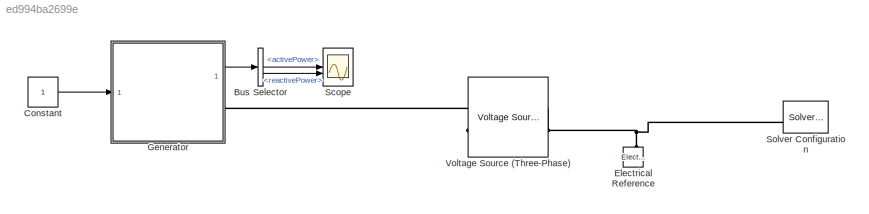
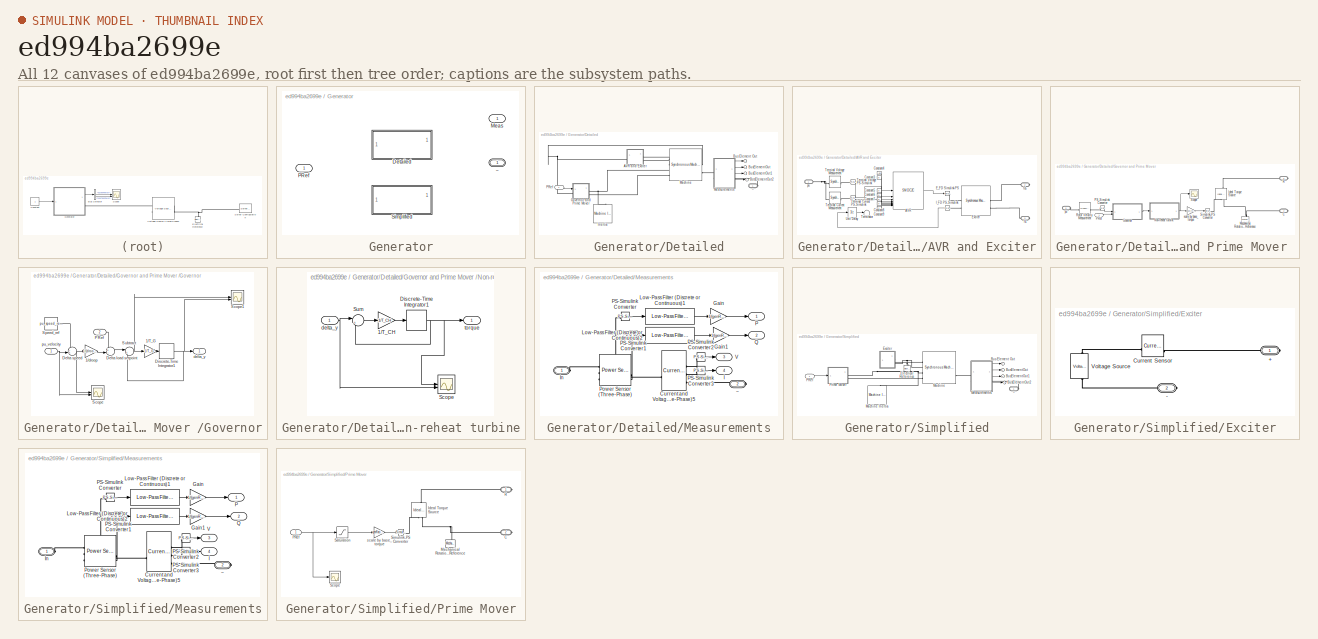
[diagram: thumbnail index - all 12 canvases of the model, root first then tree order]
MODEL slx_ed994ba2699e
KIND model
CONFIG AbsTol = auto
CONFIG EnableMultiTasking = off
CONFIG FixedStep = auto
CONFIG MaxStep = auto
CONFIG MinStep = auto
CONFIG PostLoadFcn = GeneratorParam;
CONFIG RelTol = 1e-3
CONFIG SampleTimeConstraint = Unconstrained
CONFIG SolverName = VariableStepAuto
CONFIG StartTime = 0.0
CONFIG StopTime = 10
BLOCK [BusSelector] Bus Selector
  OutputSignals = activePower,reactivePower
BLOCK [Constant] Constant
BLOCK [Reference] Electrical Reference  REF=fl_lib/Electrical/Electrical Elements/Electrical Reference
  NameLocation = right
  SourceBlock = fl_lib/Electrical/Electrical Elements/Electrical Reference
  SourceType = Electrical Reference
BLOCK [SubSystem] Generator
  CopyFcn = set_param(gcbh,'LinkStatus','none');
  LabelModeActiveChoice = Detailed
  Variant = on
  VariantControlMode = label
BLOCK [SubSystem] Generator/Detailed
  VariantControl = Detailed
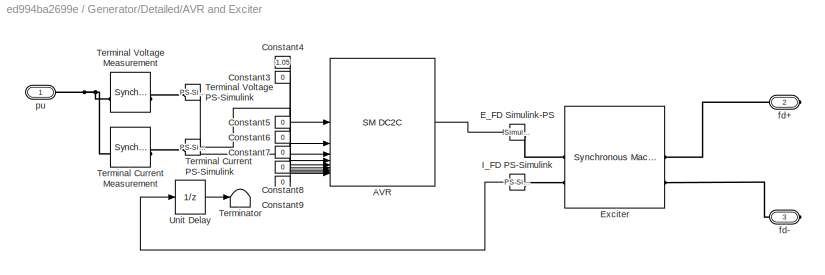
BLOCK [SubSystem] Generator/Detailed/AVR and Exciter
  NameLocation = top
BLOCK [Reference] Generator/Detailed/AVR and Exciter/AVR  REF=eeSmDC2C/SM DC2C
  SourceBlock = eeSmDC2C/SM DC2C
  SourceType = SM DC2C
BLOCK [Constant] Generator/Detailed/AVR and Exciter/Constant3
  Value = 0
BLOCK [Constant] Generator/Detailed/AVR and Exciter/Constant4
  Value = 1.05
BLOCK [Constant] Generator/Detailed/AVR and Exciter/Constant5
  Value = 0
BLOCK [Constant] Generator/Detailed/AVR and Exciter/Constant6
  Value = 0
BLOCK [Constant] Generator/Detailed/AVR and Exciter/Constant7
  Value = 0
BLOCK [Constant] Generator/Detailed/AVR and Exciter/Constant8
  Value = 0
BLOCK [Constant] Generator/Detailed/AVR and Exciter/Constant9
  Value = 0
BLOCK [Reference] Generator/Detailed/AVR and Exciter/E_FD Simulink-PS   REF=nesl_utility/Simulink-PS
Converter
  SourceBlock = nesl_utility/Simulink-PS\nConverter
  SourceType = Simulink-PS\nConverter
BLOCK [Reference] Generator/Detailed/AVR and Exciter/Exciter  REF=ee_lib/Electromechanical/Synchronous/Synchronous Machine
Field Circuit
  SourceBlock = ee_lib/Electromechanical/Synchronous/Synchronous Machine\nField Circuit
  SourceType = Synchronous Machine\nField Circuit
BLOCK [Reference] Generator/Detailed/AVR and Exciter/I_FD PS-Simulink  REF=nesl_utility/PS-Simulink
Converter
  SourceBlock = nesl_utility/PS-Simulink\nConverter
  SourceType = PS-Simulink\nConverter
BLOCK [Reference] Generator/Detailed/AVR and Exciter/Terminal Current Measurement  REF=ee_lib/Electromechanical/Synchronous/Synchronous Machine
Measurement
  SourceBlock = ee_lib/Electromechanical/Synchronous/Synchronous Machine\nMeasurement
  SourceType = Synchronous Machine\nMeasurement
BLOCK [Reference] Generator/Detailed/AVR and Exciter/Terminal Current PS-Simulink  REF=nesl_utility/PS-Simulink
Converter
  SourceBlock = nesl_utility/PS-Simulink\nConverter
  SourceType = PS-Simulink\nConverter
BLOCK [Reference] Generator/Detailed/AVR and Exciter/Terminal Voltage Measurement  REF=ee_lib/Electromechanical/Synchronous/Synchronous Machine
Measurement
  SourceBlock = ee_lib/Electromechanical/Synchronous/Synchronous Machine\nMeasurement
  SourceType = Synchronous Machine\nMeasurement
BLOCK [Reference] Generator/Detailed/AVR and Exciter/Terminal Voltage PS-Simulink  REF=nesl_utility/PS-Simulink
Converter
  SourceBlock = nesl_utility/PS-Simulink\nConverter
  SourceType = PS-Simulink\nConverter
BLOCK [Terminator] Generator/Detailed/AVR and Exciter/Terminator
BLOCK [UnitDelay] Generator/Detailed/AVR and Exciter/Unit Delay
  HasFrameUpgradeWarning = on
  InitialCondition = 1.32943
  SampleTime = -1
BLOCK [PMIOPort] Generator/Detailed/AVR and Exciter/fd+
  Port = 2
  Side = Right
BLOCK [PMIOPort] Generator/Detailed/AVR and Exciter/fd-
  Port = 3
  Side = Right
BLOCK [PMIOPort] Generator/Detailed/AVR and Exciter/pu
  Side = Left
BLOCK [Outport] Generator/Detailed/Bus Element Out
BLOCK [Outport] Generator/Detailed/BusElementOut
BLOCK [Outport] Generator/Detailed/BusElementOut1
BLOCK [Outport] Generator/Detailed/BusElementOut2
BLOCK [SubSystem] Generator/Detailed/Governor and Prime Mover 
BLOCK [PMIOPort] Generator/Detailed/Governor and Prime Mover /C
  Port = 2
  Side = Right
BLOCK [SubSystem] Generator/Detailed/Governor and Prime Mover /Governor
BLOCK [Gain] Generator/Detailed/Governor and Prime Mover /Governor/1//T_G
  Gain = 1/T_G
BLOCK [Gain] Generator/Detailed/Governor and Prime Mover /Governor/1//droop
  Gain = 1/(droop_percentage/100)
BLOCK [Sum] Generator/Detailed/Governor and Prime Mover /Governor/Delta load setpoint
  Inputs = +-|
BLOCK [Sum] Generator/Detailed/Governor and Prime Mover /Governor/Delta speed
  Inputs = -+|
BLOCK [DiscreteIntegrator] Generator/Detailed/Governor and Prime Mover /Governor/Discrete-Time Integrator1
  ICPrevOutput = DiscIntNeverNeededParam
  ICPrevScaledInput = DiscIntNeverNeededParam
  InitialCondition = pu_torque0
  InitialConditionSetting = Auto
  SampleTime = -1
BLOCK [Inport] Generator/Detailed/Governor and Prime Mover /Governor/PRef
  Port = 2
BLOCK [Scope] Generator/Detailed/Governor and Prime Mover /Governor/Scope
  Floating = off
  GraphicalSettings = {"GraphicalSettings":{"LegacySettings":true,"Style":{"Style":{"MinimizeControls":"false","PlotType":"Auto"}}}}
  NumInputPorts = 2
  WasSavedAsWebScope = on
BLOCK [Scope] Generator/Detailed/Governor and Prime Mover /Governor/Scope1
  Floating = off
  GraphicalSettings = {"GraphicalSettings":{"LegacySettings":true,"Style":{"Style":{"MinimizeControls":"false","PlotType":"Auto"}}}}
  NumInputPorts = 2
  WasSavedAsWebScope = on
BLOCK [Constant] Generator/Detailed/Governor and Prime Mover /Governor/Speed_ref
  Value = pu_speed_reference
BLOCK [Sum] Generator/Detailed/Governor and Prime Mover /Governor/Subtract
  Inputs = |+-
BLOCK [Outport] Generator/Detailed/Governor and Prime Mover /Governor/delta_y
  VectorParamsAs1DForOutWhenUnconnected = off
BLOCK [Inport] Generator/Detailed/Governor and Prime Mover /Governor/pu_velocity
BLOCK [Reference] Generator/Detailed/Governor and Prime Mover /Ideal Torque Source  REF=fl_lib/Mechanical/Mechanical Sources/Ideal Torque Source
  NameLocation = left
  SourceBlock = fl_lib/Mechanical/Mechanical Sources/Ideal Torque Source
  SourceType = Ideal Torque Source
BLOCK [Reference] Generator/Detailed/Governor and Prime Mover /Mechanical Rotational Reference  REF=fl_lib/Mechanical/Rotational Elements/Mechanical
Rotational Reference
  NameLocation = right
  SourceBlock = fl_lib/Mechanical/Rotational Elements/Mechanical\nRotational Reference
  SourceType = Mechanical\nRotational Reference
BLOCK [SubSystem] Generator/Detailed/Governor and Prime Mover /Non-reheat turbine
BLOCK [Gain] Generator/Detailed/Governor and Prime Mover /Non-reheat turbine/1//T_CH
  Gain = 1/T_CH
BLOCK [DiscreteIntegrator] Generator/Detailed/Governor and Prime Mover /Non-reheat turbine/Discrete-Time Integrator1
  ICPrevOutput = DiscIntNeverNeededParam
  ICPrevScaledInput = DiscIntNeverNeededParam
  InitialCondition = pu_torque0
  InitialConditionSetting = Auto
  SampleTime = -1
BLOCK [Scope] Generator/Detailed/Governor and Prime Mover /Non-reheat turbine/Scope
  Floating = off
  GraphicalSettings = {"GraphicalSettings":{"LegacySettings":true,"Style":{"Style":{"MinimizeControls":"false","PlotType":"Auto"}}}}
  NumInputPorts = 2
  WasSavedAsWebScope = on
BLOCK [Sum] Generator/Detailed/Governor and Prime Mover /Non-reheat turbine/Sum
  Inputs = |+-
BLOCK [Inport] Generator/Detailed/Governor and Prime Mover /Non-reheat turbine/delta_y
BLOCK [Outport] Generator/Detailed/Governor and Prime Mover /Non-reheat turbine/torque
  VectorParamsAs1DForOutWhenUnconnected = off
BLOCK [Inport] Generator/Detailed/Governor and Prime Mover /PRef
BLOCK [Reference] Generator/Detailed/Governor and Prime Mover /PS-Simulink Converter  REF=nesl_utility/PS-Simulink
Converter
  SourceBlock = nesl_utility/PS-Simulink\nConverter
  SourceType = PS-Simulink\nConverter
BLOCK [PMIOPort] Generator/Detailed/Governor and Prime Mover /R
  Side = Right
BLOCK [Reference] Generator/Detailed/Governor and Prime Mover /Rotor Velocity Measurement  REF=ee_lib/Electromechanical/Synchronous/Synchronous Machine
Measurement
  SourceBlock = ee_lib/Electromechanical/Synchronous/Synchronous Machine\nMeasurement
  SourceType = Synchronous Machine\nMeasurement
BLOCK [Scope] Generator/Detailed/Governor and Prime Mover /Scope
  Floating = off
  GraphicalSettings = {"GraphicalSettings":{"LegacySettings":true,"Style":{"Style":{"MinimizeControls":"false","PlotType":"Auto"}}}}
  NumInputPorts = 1
  WasSavedAsWebScope = on
BLOCK [Reference] Generator/Detailed/Governor and Prime Mover /Simulink-PS Converter  REF=nesl_utility/Simulink-PS
Converter
  SourceBlock = nesl_utility/Simulink-PS\nConverter
  SourceType = Simulink-PS\nConverter
BLOCK [PMIOPort] Generator/Detailed/Governor and Prime Mover /pu
  Port = 3
  Side = Left
BLOCK [Gain] Generator/Detailed/Governor and Prime Mover /scale by base_torque
  Gain = base_torque
BLOCK [Reference] Generator/Detailed/Inertia  REF=ee_lib/Electromechanical/Mechanical/Machine
Inertia
  NameLocation = right
  SourceBlock = ee_lib/Electromechanical/Mechanical/Machine\nInertia
  SourceType = Machine\nInertia
BLOCK [Reference] Generator/Detailed/Machine  REF=ee_lib/Electromechanical/Synchronous/Synchronous Machine
Round Rotor
  SourceBlock = ee_lib/Electromechanical/Synchronous/Synchronous Machine\nRound Rotor
  SourceType = Synchronous Machine\nRound Rotor
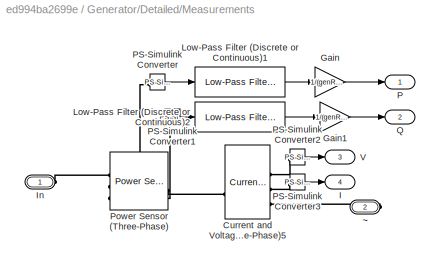
BLOCK [SubSystem] Generator/Detailed/Measurements
BLOCK [Reference] Generator/Detailed/Measurements/Current and Voltage Sensor (Three-Phase)5  REF=ee_lib/Sensors &
Transducers/Current and Voltage
Sensor (Three-Phase)
  SourceBlock = ee_lib/Sensors &\nTransducers/Current and Voltage\nSensor (Three-Phase)
  SourceType = Current and Voltage\nSensor (Three-Phase)
BLOCK [Gain] Generator/Detailed/Measurements/Gain
  Gain = 1/(genRating*1000)
BLOCK [Gain] Generator/Detailed/Measurements/Gain1
  Gain = 1/(genRating*1000)
BLOCK [Outport] Generator/Detailed/Measurements/I
  Port = 4
BLOCK [PMIOPort] Generator/Detailed/Measurements/In
  Side = Left
BLOCK [Reference] Generator/Detailed/Measurements/Low-Pass Filter (Discrete or Continuous)1  REF=eeGeneralControl/Low-Pass Filter
(Discrete or Continuous)
  SourceBlock = eeGeneralControl/Low-Pass Filter\n(Discrete or Continuous)
  SourceType = Low-Pass Filter (Discrete or Continuous)
BLOCK [Reference] Generator/Detailed/Measurements/Low-Pass Filter (Discrete or Continuous)2  REF=eeGeneralControl/Low-Pass Filter
(Discrete or Continuous)
  SourceBlock = eeGeneralControl/Low-Pass Filter\n(Discrete or Continuous)
  SourceType = Low-Pass Filter (Discrete or Continuous)
BLOCK [Outport] Generator/Detailed/Measurements/P
BLOCK [Reference] Generator/Detailed/Measurements/PS-Simulink Converter  REF=nesl_utility/PS-Simulink
Converter
  SourceBlock = nesl_utility/PS-Simulink\nConverter
  SourceType = PS-Simulink\nConverter
BLOCK [Reference] Generator/Detailed/Measurements/PS-Simulink Converter1  REF=nesl_utility/PS-Simulink
Converter
  SourceBlock = nesl_utility/PS-Simulink\nConverter
  SourceType = PS-Simulink\nConverter
BLOCK [Reference] Generator/Detailed/Measurements/PS-Simulink Converter2  REF=nesl_utility/PS-Simulink
Converter
  SourceBlock = nesl_utility/PS-Simulink\nConverter
  SourceType = PS-Simulink\nConverter
BLOCK [Reference] Generator/Detailed/Measurements/PS-Simulink Converter3  REF=nesl_utility/PS-Simulink
Converter
  SourceBlock = nesl_utility/PS-Simulink\nConverter
  SourceType = PS-Simulink\nConverter
BLOCK [Reference] Generator/Detailed/Measurements/Power Sensor (Three-Phase)  REF=ee_lib/Sensors &
Transducers/Power Sensor
(Three-Phase)
  SourceBlock = ee_lib/Sensors &\nTransducers/Power Sensor\n(Three-Phase)
  SourceType = Power Sensor\n(Three-Phase)
BLOCK [Outport] Generator/Detailed/Measurements/Q
  Port = 2
BLOCK [Outport] Generator/Detailed/Measurements/V
  Port = 3
BLOCK [PMIOPort] Generator/Detailed/Measurements/~
  Port = 2
  Side = Right
BLOCK [Inport] Generator/Detailed/PRef
BLOCK [PMIOPort] Generator/Detailed/~
  Side = Right
BLOCK [Outport] Generator/Meas
BLOCK [Inport] Generator/PRef
BLOCK [SubSystem] Generator/Simplified
  VariantControl = Simplified
BLOCK [Outport] Generator/Simplified/Bus Element Out
BLOCK [Outport] Generator/Simplified/BusElementOut
BLOCK [Outport] Generator/Simplified/BusElementOut1
BLOCK [Outport] Generator/Simplified/BusElementOut2
BLOCK [Reference] Generator/Simplified/Electrical Reference  REF=fl_lib/Electrical/Electrical Elements/Electrical Reference
  NameLocation = right
  SourceBlock = fl_lib/Electrical/Electrical Elements/Electrical Reference
  SourceType = Electrical Reference
BLOCK [SubSystem] Generator/Simplified/Exciter
BLOCK [PMIOPort] Generator/Simplified/Exciter/+
  Side = Right
BLOCK [PMIOPort] Generator/Simplified/Exciter/-
  Port = 2
  Side = Right
BLOCK [Reference] Generator/Simplified/Exciter/Current Sensor  REF=fl_lib/Electrical/Electrical Sensors/Current Sensor
  SourceBlock = fl_lib/Electrical/Electrical Sensors/Current Sensor
  SourceType = Current Sensor
BLOCK [Reference] Generator/Simplified/Exciter/Voltage Source  REF=ee_lib/Sources/Voltage Source
  NameLocation = right
  SourceBlock = ee_lib/Sources/Voltage Source
  SourceType = Voltage Source
BLOCK [Reference] Generator/Simplified/Machine  REF=ee_lib/Electromechanical/Synchronous/Synchronous Machine
Round Rotor
  SourceBlock = ee_lib/Electromechanical/Synchronous/Synchronous Machine\nRound Rotor
  SourceType = Synchronous Machine\nRound Rotor
BLOCK [Reference] Generator/Simplified/Machine Inertia  REF=ee_lib/Electromechanical/Mechanical/Machine
Inertia
  NameLocation = right
  SourceBlock = ee_lib/Electromechanical/Mechanical/Machine\nInertia
  SourceType = Machine\nInertia
BLOCK [SubSystem] Generator/Simplified/Measurements
BLOCK [Reference] Generator/Simplified/Measurements/Current and Voltage Sensor (Three-Phase)5  REF=ee_lib/Sensors &
Transducers/Current and Voltage
Sensor (Three-Phase)
  SourceBlock = ee_lib/Sensors &\nTransducers/Current and Voltage\nSensor (Three-Phase)
  SourceType = Current and Voltage\nSensor (Three-Phase)
BLOCK [Gain] Generator/Simplified/Measurements/Gain
  Gain = 1/(genRating*1000)
BLOCK [Gain] Generator/Simplified/Measurements/Gain1
  Gain = 1/(genRating*1000)
BLOCK [Outport] Generator/Simplified/Measurements/I
  Port = 4
BLOCK [PMIOPort] Generator/Simplified/Measurements/In
  Side = Left
BLOCK [Reference] Generator/Simplified/Measurements/Low-Pass Filter (Discrete or Continuous)1  REF=eeGeneralControl/Low-Pass Filter
(Discrete or Continuous)
  SourceBlock = eeGeneralControl/Low-Pass Filter\n(Discrete or Continuous)
  SourceType = Low-Pass Filter (Discrete or Continuous)
BLOCK [Reference] Generator/Simplified/Measurements/Low-Pass Filter (Discrete or Continuous)2  REF=eeGeneralControl/Low-Pass Filter
(Discrete or Continuous)
  SourceBlock = eeGeneralControl/Low-Pass Filter\n(Discrete or Continuous)
  SourceType = Low-Pass Filter (Discrete or Continuous)
BLOCK [Outport] Generator/Simplified/Measurements/P
BLOCK [Reference] Generator/Simplified/Measurements/PS-Simulink Converter  REF=nesl_utility/PS-Simulink
Converter
  SourceBlock = nesl_utility/PS-Simulink\nConverter
  SourceType = PS-Simulink\nConverter
BLOCK [Reference] Generator/Simplified/Measurements/PS-Simulink Converter1  REF=nesl_utility/PS-Simulink
Converter
  SourceBlock = nesl_utility/PS-Simulink\nConverter
  SourceType = PS-Simulink\nConverter
BLOCK [Reference] Generator/Simplified/Measurements/PS-Simulink Converter2  REF=nesl_utility/PS-Simulink
Converter
  SourceBlock = nesl_utility/PS-Simulink\nConverter
  SourceType = PS-Simulink\nConverter
BLOCK [Reference] Generator/Simplified/Measurements/PS-Simulink Converter3  REF=nesl_utility/PS-Simulink
Converter
  SourceBlock = nesl_utility/PS-Simulink\nConverter
  SourceType = PS-Simulink\nConverter
BLOCK [Reference] Generator/Simplified/Measurements/Power Sensor (Three-Phase)  REF=ee_lib/Sensors &
Transducers/Power Sensor
(Three-Phase)
  SourceBlock = ee_lib/Sensors &\nTransducers/Power Sensor\n(Three-Phase)
  SourceType = Power Sensor\n(Three-Phase)
BLOCK [Outport] Generator/Simplified/Measurements/Q
  Port = 2
BLOCK [Outport] Generator/Simplified/Measurements/V
  Port = 3
BLOCK [PMIOPort] Generator/Simplified/Measurements/~
  Port = 2
  Side = Right
BLOCK [Inport] Generator/Simplified/PRef
BLOCK [SubSystem] Generator/Simplified/Prime Mover
BLOCK [PMIOPort] Generator/Simplified/Prime Mover/C
  Port = 2
  Side = Right
BLOCK [Reference] Generator/Simplified/Prime Mover/Ideal Torque Source  REF=fl_lib/Mechanical/Mechanical Sources/Ideal Torque Source
  NameLocation = left
  SourceBlock = fl_lib/Mechanical/Mechanical Sources/Ideal Torque Source
  SourceType = Ideal Torque Source
BLOCK [Reference] Generator/Simplified/Prime Mover/Mechanical Rotational Reference  REF=fl_lib/Mechanical/Rotational Elements/Mechanical
Rotational Reference
  NameLocation = right
  SourceBlock = fl_lib/Mechanical/Rotational Elements/Mechanical\nRotational Reference
  SourceType = Mechanical\nRotational Reference
BLOCK [Inport] Generator/Simplified/Prime Mover/PRef
BLOCK [PMIOPort] Generator/Simplified/Prime Mover/R
  Side = Right
BLOCK [Saturate] Generator/Simplified/Prime Mover/Saturation
  LowerLimit = 0
  UpperLimit = 1
BLOCK [Scope] Generator/Simplified/Prime Mover/Scope
  ActiveDisplayYMaximum = 1.25
  ActiveDisplayYMinimum = -1.25
  Floating = off
  GraphicalSettings = {"GraphicalSettings":{"LegacySettings":true,"Style":{"Style":{"AxesColor":"[0 0 0]","ChannelNames":[""],"ColorOrder":"[1 0.909803921568627 0.392156862745098;0.149019607843137 0.549019607843137 0.866666666666667;0.96078431372549 0.466666666666667 0.16078431372549;0.286274509803922 0.858823529411765 0.250980392156863;0.752941176470588 0.36078431372549 0.984313725490196;0.423529411764706 0.9568627450...<+432ch>
  MultipleDisplayCache = [{"MaxYLimMag":1.25,"MaxYLimReal":1.25,"MinYLimMag":0,"MinYLimReal":-1.25,"PlotAsMagnitudePhase":false,"ShowGrid":true,"ShowLegend":false,"Title":"%<SignalLabel>","YLabel":""}]
  NumInputPorts = 1
  WasSavedAsWebScope = on
BLOCK [Reference] Generator/Simplified/Prime Mover/Simulink-PS Converter  REF=nesl_utility/Simulink-PS
Converter
  SourceBlock = nesl_utility/Simulink-PS\nConverter
  SourceType = Simulink-PS\nConverter
BLOCK [Gain] Generator/Simplified/Prime Mover/scale by base_torque
  Gain = genRating*1000/(2*pi*frequency)
BLOCK [PMIOPort] Generator/Simplified/~
  Side = Right
BLOCK [PMIOPort] Generator/~
  Side = Right
BLOCK [Scope] Scope
  ActiveDisplayYMaximum = 10.530917303152549
  ActiveDisplayYMinimum = -10.892713831493737
  DataLoggingVariableName = ScopeData1
  Floating = off
  GraphicalSettings = {"AxesScalingProperties":{"AlignXAxis":"Center","AlignYAxis":"Center","AutoScaleXAxisLimits":false,"AxesScaling":"Manual","AxesScalingNumUpdates":10,"ExpandOnly":true,"ScaleAxesLimitsAtStop":false,"XAxisDataRange":100,"YAxisDataRange":80},"DisplayProperties":{"ColorOrder":["auto","auto","auto","auto","auto","auto","auto","auto","auto","auto","auto","auto","auto","auto","auto","auto","auto","auto",...<+2145ch>
  MultipleDisplayCache = [{"MaxYLimMag":313.4203534904384,"MaxYLimReal":10.530917303152549,"MinYLimMag":0,"MinYLimReal":-10.892713831493737,"PlotAsMagnitudePhase":false,"ShowGrid":true,"ShowLegend":false,"Title":"%<SignalLabel>","YLabel":""}]
  NumInputPorts = 2
  ScopeFrameLocation = window
  WasSavedAsWebScope = on
  WindowPosition = [1952.000000,148.000000,1287.000000,672.000000,]
BLOCK [Reference] Solver Configuration  REF=nesl_utility/Solver
Configuration
  NameLocation = top
  SourceBlock = nesl_utility/Solver\nConfiguration
  SourceType = Solver\nConfiguration
BLOCK [Reference] Voltage Source (Three-Phase)  REF=ee_lib/Sources/Voltage
Source
(Three-Phase)
  NameLocation = top
  SourceBlock = ee_lib/Sources/Voltage\nSource\n(Three-Phase)
  SourceType = Voltage\nSource\n(Three-Phase)
LINE Bus Selector:1 -> Scope:1
LINE Bus Selector:2 -> Scope:2
LINE Constant:1 -> Generator:1
LINE Generator:1 -> Bus Selector:1
PNET net1: Electrical Reference:LConn1 -- Solver Configuration:RConn1 -- Voltage Source (Three-Phase):LConn1
PLINE Generator:RConn1 -- Voltage Source (Three-Phase):RConn1
note: PNET lines group multi-terminal physical nets as a canonical sorted terminal list (undirected conserving connections); 2-terminal nets keep the pairwise PLINE form
